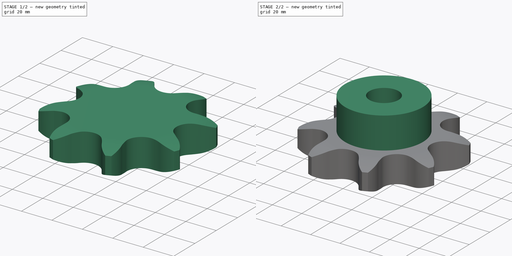
[diagram: build sequence overview — one tinted view per stage of 2, left to right]
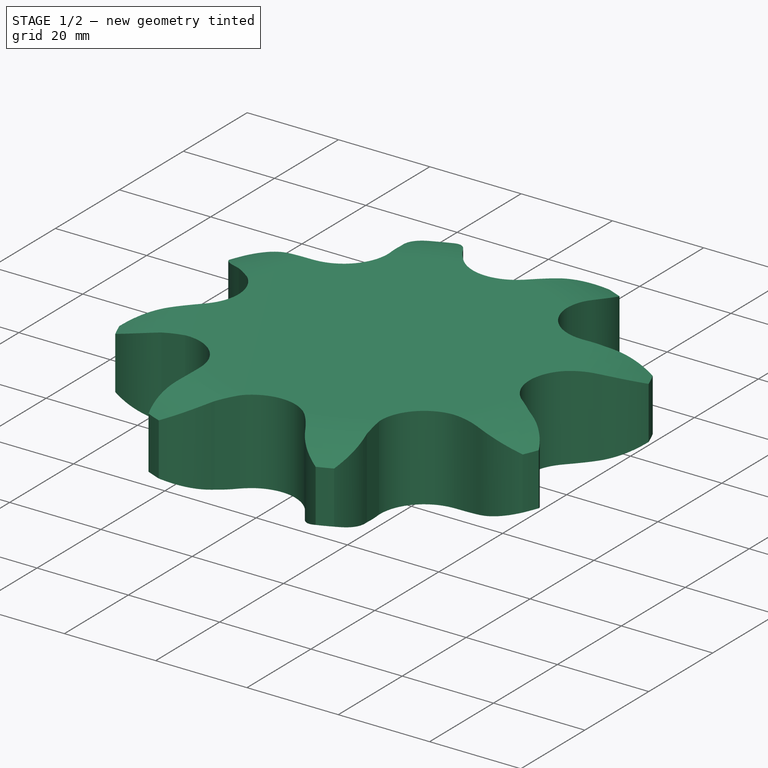
[diagram: stage 1 of 2 — iso view after this stage's code; geometry added in this stage tinted green]
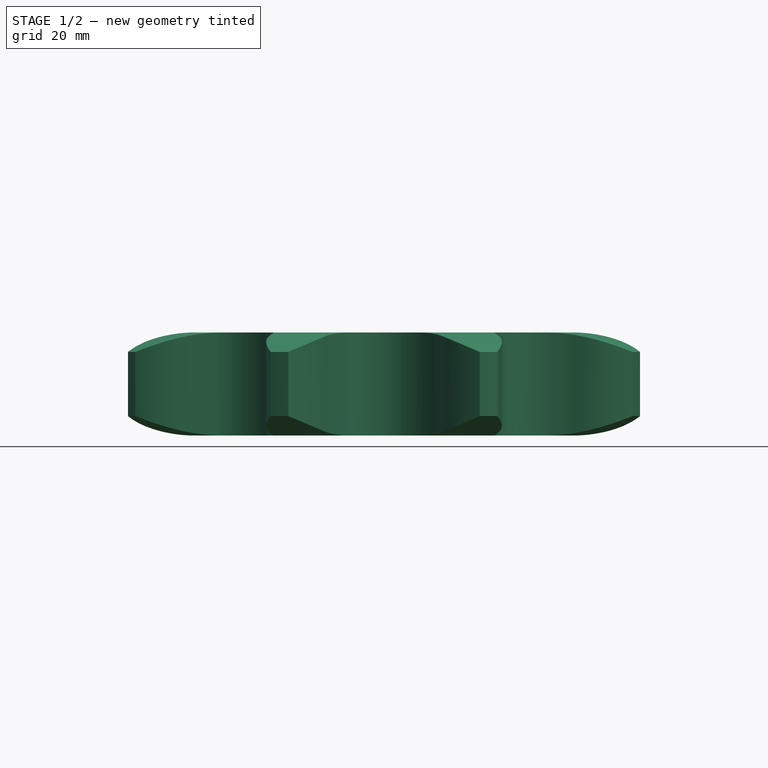
[diagram: stage 1 of 2 — front view after this stage's code; geometry added in this stage tinted green]
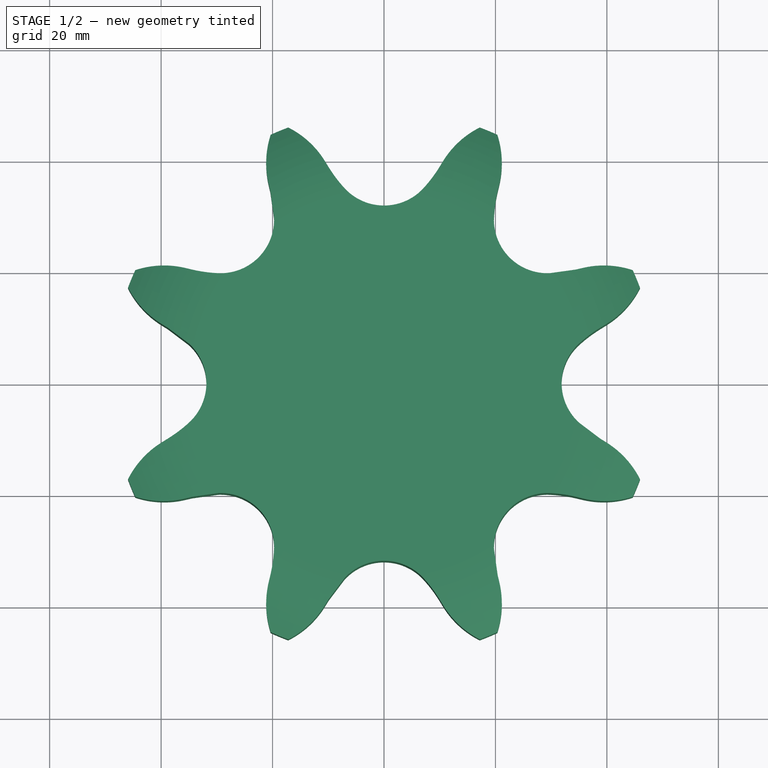
[diagram: stage 1 of 2 — top view after this stage's code; geometry added in this stage tinted green]
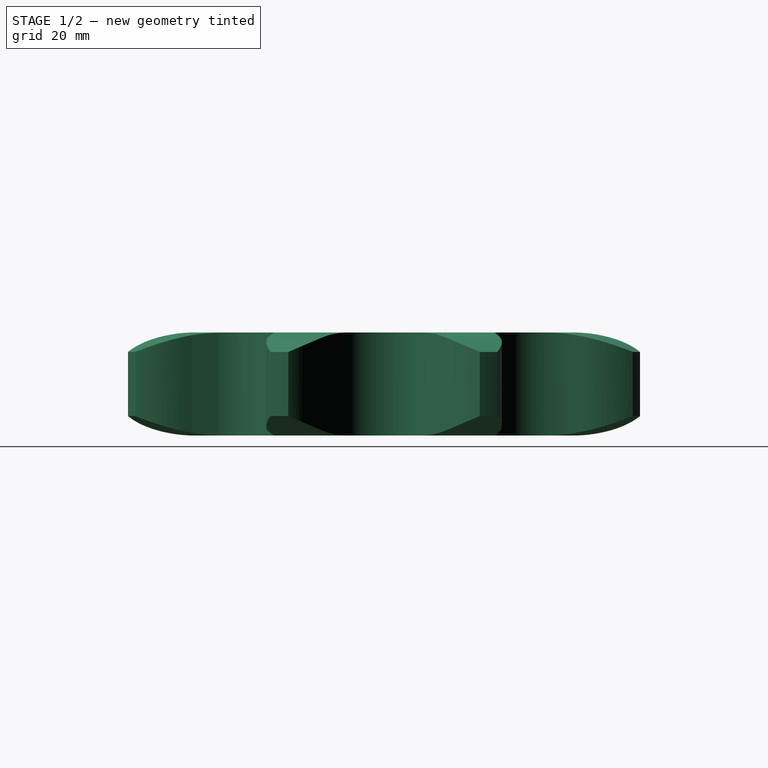
[diagram: stage 1 of 2 — right view after this stage's code; geometry added in this stage tinted green]
FCSTD DOCUMENT  (FreeCAD 0.21R33771 (Git))
Label: Sprocket ANSI simplex 1¼x¾
License: Attribution 4.0 International (CC BY 4.0)
LicenseURL: http://creativecommons.org/licenses/by/4.0/
objects: Sketcher::SketchObject×3, PartDesign::Pad×2, Spreadsheet::Sheet×1, Part::Part2DObjectPython×1, PartDesign::Groove×1, PartDesign::Pocket×1, PartDesign::Body×1, App::Part×1
note: 13 computed .brp shape members not serialized (recipe doc carries the construction recipe); baked Part::Feature solids carry a one-line shape summary decoded from their .brp

FEATURE [Spreadsheet::Sheet] Spreadsheet  label="Data"
  TeethNumber = 0
  cells = A1='Teeth Number; B1='P (Pitch); C1='Wc (Chain width); D1='Dr (Roller diameter); E1='Tr (Tooth radius); F1='Rw (Radius width); G1='Wt (Tooth width); H1='z (Number of teeth); I1='De (External Diameter); J1='Dp (pitch diameter); K1='d (Hub diameter); L1='D (Hole diameter); M1='H (Total height); A2==hiddenref(.TeethNumber.String); B2(P)==.B3; C2(Wc)==.C3; D2(Dr)==.D3; E2(Tr)==.E3; F2(Rw)==.F3; G2(Wt)==.G3; H2(z)==.H3; I2(De)==.I3; J2(Dp)==.J3; K2(d)==.K3; L2(D)==.L3; M2(H)==.M3; A3='Z 8; B3=31.75; C3=19.56; D3=19.05; E3=32; F3=3.5; G3=18.5; H3=8; I3=98.1; J3=82.96; K3=53; L3=20; M3=40; A4='Z 9; B4=31.75; C4=19.56; D4=19.05; E4=32; F4=3.5; G4=18.5; H4=9; I4=108; J4=92.84; K4=63; L4=20; M4=40; A5='Z 10; B5=31.75; C5=19.56; D5=19.05; E5=32; F5=3.5; G5=18.5; H5=10; I5=117.9; J5=102.74; K5=70; L5=20; M5=40; A6='Z 11; B6=31.75; C6=19.56; D6=19.05; E6=32; F6=3.5; G6=18.5; H6=11; I6=127.8; J6=112.68; K6=77; L6=20; M6=45; A7='Z 12; B7=31.75; C7=19.56; D7=19.05; E7=32; F7=3.5; G7=18.5; H7=12; I7=137.8; J7=122.68; K7=88; L7=20; M7=45; A8='Z 13; B8=31.75; C8=19.56; D8=19.05; E8=32; F8=3.5; G8=18.5; H8=13; I8=147.8; J8=132.65; K8=98; L8=20; M8=45; A9='Z 14; B9=31.75; C9=19.56; D9=19.05; E9=32; F9=3.5; G9=18.5; H9=14; I9=157.8; J9=142.68; K9=108; L9=20; M9=45; A10='Z 15; B10=31.75; C10=19.56; D10=19.05; E10=32; F10=3.5; G10=18.5; H10=15; I10=167.9; J10=152.72; K10=118; L10=20; M10=45; A11='Z 16; B11=31.75; C11=19.56; D11=19.05; E11=32; F11=3.5; G11=18.5; H11=16; I11=177.9; J11=162.75; K11=120; L11=25; M11=50; A12='Z 17; B12=31.75; C12=19.56; D12=19.05; E12=32; F12=3.5; G12=18.5; H12=17; I12=187.9; J12=172.78; K12=120; L12=25; M12=50; A13='Z 18; B13=31.75; C13=19.56; D13=19.05; E13=32; F13=3.5; G13=18.5; H13=18; I13=198; J13=182.85; K13=120; L13=25; M13=50; A14='Z 19; B14=31.75; C14=19.56; D14=19.05; E14=32; F14=3.5; G14=18.5; H14=19; I14=208.1; J14=192.91; K14=120; L14=25; M14=50; A15='Z 20; B15=31.75; C15=19.56; D15=19.05; E15=32; F15=3.5; G15=18.5; H15=20; I15=218.1; J15=202.98; K15=120; L15=25; M15=50; A16='Z 21; B16=31.75; C16=19.56; D16=19.05; E16=32; +307 more cells
  expr: .TeethNumber.Enum = cells[<<A3:|>>]
  expr: .cells.Bind.B2.ZZ2 = tuple(.cells; <<B>> + str(hiddenref(TeethNumber) + 3); <<ZZ>> + str(hiddenref(TeethNumber) + 3))
FEATURE [Part::Part2DObjectPython] Sprocket  label="Teeth sketch"  # Draft 2D object (typed FeaturePython)
  ANSISize = 100
  NumberOfTeeth = 8
  Pitch = 31.75
  RollerDiameter = 19.05
  expr: NumberOfTeeth = <<Data>>.z
  expr: Pitch = <<Data>>.P
  expr: RollerDiameter = <<Data>>.Dr
FEATURE [PartDesign::Pad] Pad  label="Teeth"
  Direction = (0,0,1)
  Length = 18.5
  Length2 = 100
  Profile = -> Sprocket
  Type = 0
  expr: Length = <<Data>>.Wt
FEATURE [Sketcher::SketchObject] Sketch  label="Radius"
  FullyConstrained = true
  MapMode = 5
  Placement = pos=(0,0,0) rot=(1,0,0;1.5708rad)
  Support = -> [XZ_Plane]
  expr: .Constraints.Re = <<Data>>.De / 2
  expr: .Constraints.Rw = <<Data>>.Rw
  expr: .Constraints.Tr = <<Data>>.Tr
  expr: .Constraints.Wt = <<Data>>.Wt
  sketch-geometry (10):
    g0: LineSegment StartX=34.4984 StartY=0 StartZ=0 EndX=49.05 EndY=0 EndZ=0
    g1: LineSegment StartX=49.05 StartY=0 StartZ=0 EndX=49.05 EndY=3.5 EndZ=0
    g2: ArcOfCircle CenterX=34.4984 CenterY=32 CenterZ=0 NormalX=0 NormalY=0 NormalZ=1 AngleXU=0 Radius=32 StartAngle=4.71239 EndAngle=5.18447
    g3: LineSegment StartX=49.05 StartY=3.5 StartZ=0 EndX=49.05 EndY=15 EndZ=0
    g4: LineSegment StartX=34.4984 StartY=18.5 StartZ=0 EndX=49.05 EndY=18.5 EndZ=0
    g5: LineSegment StartX=49.05 StartY=18.5 StartZ=0 EndX=49.05 EndY=15 EndZ=0
    g6: ArcOfCircle CenterX=34.4984 CenterY=-13.5 CenterZ=0 NormalX=0 NormalY=0 NormalZ=1 AngleXU=0 Radius=32 StartAngle=1.09872 EndAngle=1.5708
    g7: LineSegment StartX=49.05 StartY=18.5 StartZ=0 EndX=63.6016 EndY=18.5 EndZ=0
    g8: LineSegment StartX=63.6016 StartY=18.5 StartZ=0 EndX=63.6016 EndY=0 EndZ=0
    g9: LineSegment StartX=63.6016 StartY=0 StartZ=0 EndX=49.05 EndY=0 EndZ=0
  constraints (28):
    c: PointOnObject(g0,g-1)
    c: Horizontal(g0)
    c: Coincident(g0,g1)
    c: Vertical(g1)
    c: Tangent(g2,g0) = -1.5708
    c: Coincident(g2,g1)
    c: Coincident(g3,g1)
    c: Vertical(g3)
    c: Horizontal(g4)
    c: Coincident(g4,g5)
    c: Vertical(g5)
    c: Coincident(g6,g5)
    c: Tangent(g6,g4) = 1.5708
    c: Coincident(g5,g3)
    c: Equal(g2,g6)
    c: Equal(g5,g1)
    c: Radius(g2) = 32  'Tr'
    c: DistanceY(g0,g4) = 18.5  'Wt'
    c: DistanceX(g0) = 49.05  'Re'
    c: DistanceY(g1,g1) = 3.5  'Rw'
    c: Coincident(g4,g7)
    c: Coincident(g7,g8)
    c: Vertical(g8)
    c: Coincident(g8,g9)
    c: Coincident(g9,g0)
    c: Horizontal(g7)
    c: Horizontal(g9)
    c: Equal(g0,g9)
FEATURE [PartDesign::Groove] Groove  label="Teeth Radius"
  Angle = 360
  Axis = (-3e-16,3e-16,1)
  Base = (0,0,0)
  BaseFeature = -> Pad
  Profile = -> Sketch
  ReferenceAxis = -> Z_Axis
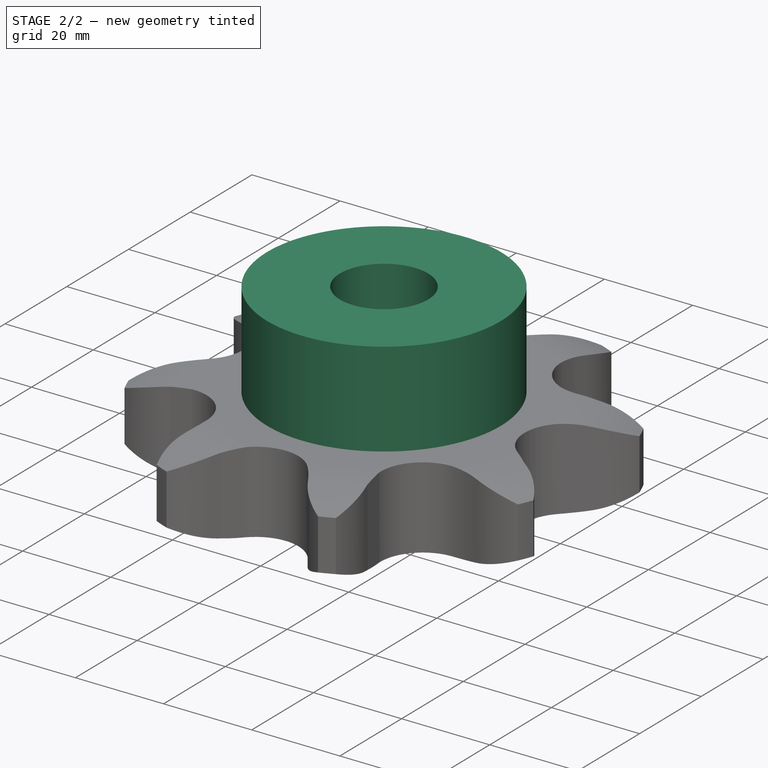
[diagram: stage 2 of 2 — iso view after this stage's code; geometry added in this stage tinted green]
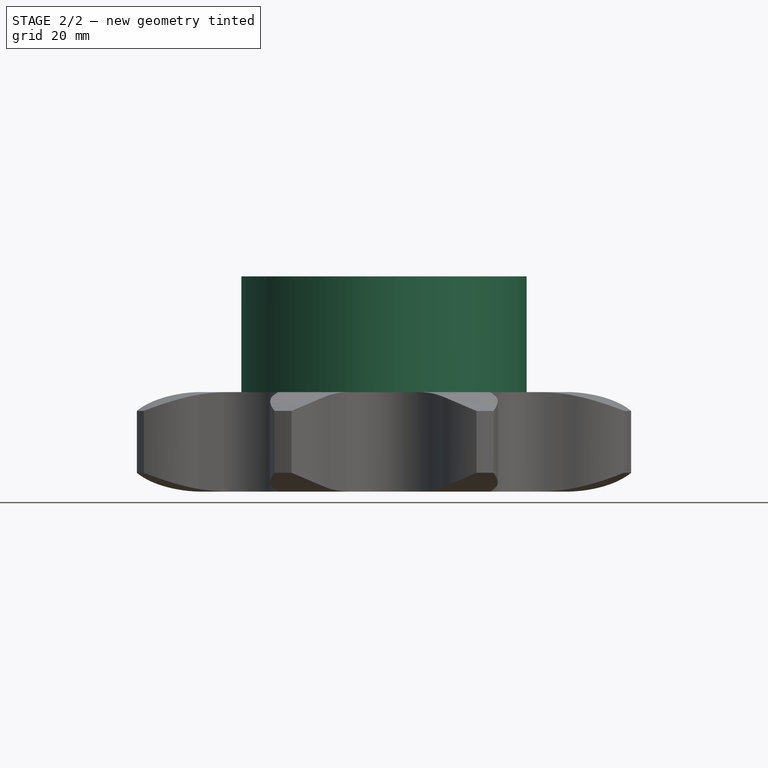
[diagram: stage 2 of 2 — front view after this stage's code; geometry added in this stage tinted green]
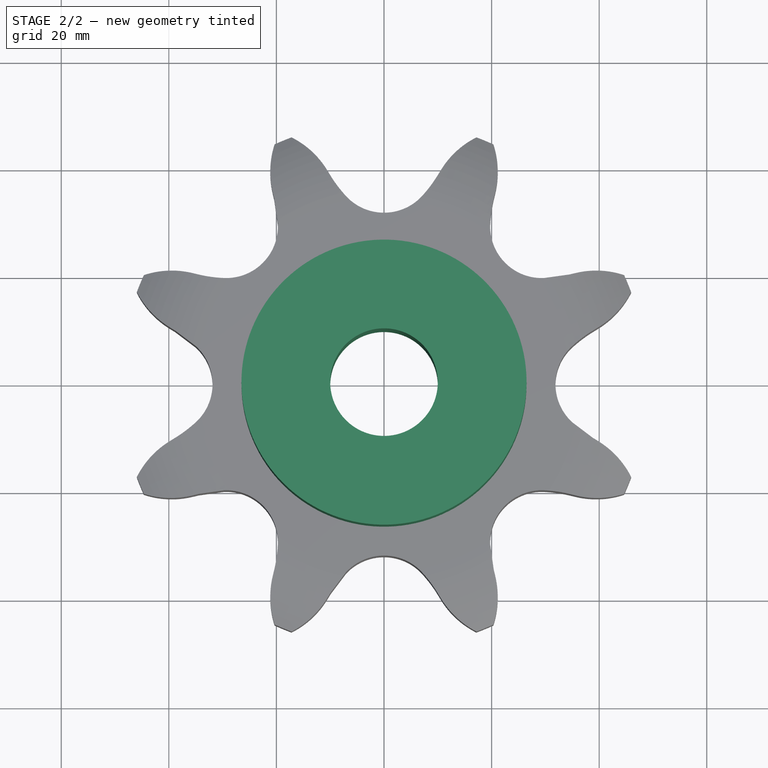
[diagram: stage 2 of 2 — top view after this stage's code; geometry added in this stage tinted green]
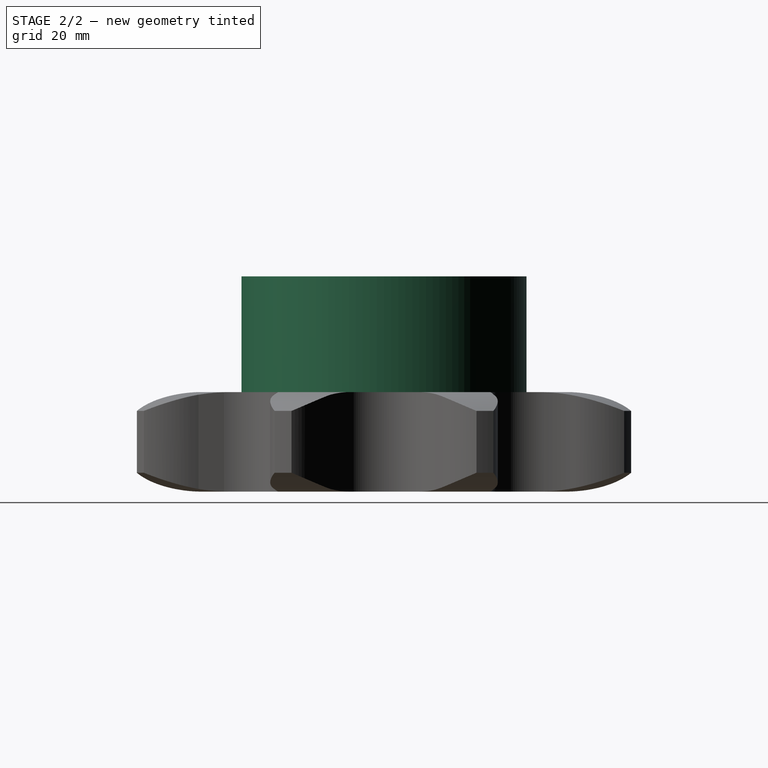
[diagram: stage 2 of 2 — right view after this stage's code; geometry added in this stage tinted green]
FEATURE [Sketcher::SketchObject] Sketch001  label="Hub sketch"
  FullyConstrained = true
  MapMode = 5
  Support = -> [XY_Plane]
  expr: .Constraints.d = <<Data>>.d
  sketch-geometry (1):
    g0: Circle CenterX=0 CenterY=0 CenterZ=0 NormalX=0 NormalY=0 NormalZ=1 AngleXU=0 Radius=26.5
  constraints (2):
    c: Coincident(g0,g-1)
    c: Diameter(g0) = 53  'd'
FEATURE [PartDesign::Pad] Pad001  label="Hub"
  BaseFeature = -> Groove
  Direction = (0,0,1)
  Length = 40
  Length2 = 100
  Profile = -> Sketch001
  Type = 0
FEATURE [Sketcher::SketchObject] Sketch002  label="Hole sketch"
  FullyConstrained = true
  MapMode = 5
  Support = -> [XY_Plane]
  expr: .Constraints.D = <<Data>>.D
  sketch-geometry (1):
    g0: Circle CenterX=0 CenterY=0 CenterZ=0 NormalX=0 NormalY=0 NormalZ=1 AngleXU=0 Radius=10
  constraints (2):
    c: Coincident(g0,g-1)
    c: Diameter(g0) = 20  'D'
FEATURE [PartDesign::Pocket] Pocket  label="Hole"
  BaseFeature = -> Pad001
  Direction = (0,0,-1)
  Length = 5
  Length2 = 100
  Midplane = true
  Profile = -> Sketch002
  Type = 1
FEATURE [PartDesign::Body] Body  label="Sprocket"
  Group = -> [Sprocket,Pad,Sketch,Groove,Sketch001,Pad001,Sketch002,Pocket]
  Origin = -> Origin
  Tip = -> Pocket
FEATURE [App::Part] Part  label="Sprocket ANSI simplex 1¼x¾"
  Group = -> [Body]
  Origin = -> Origin001
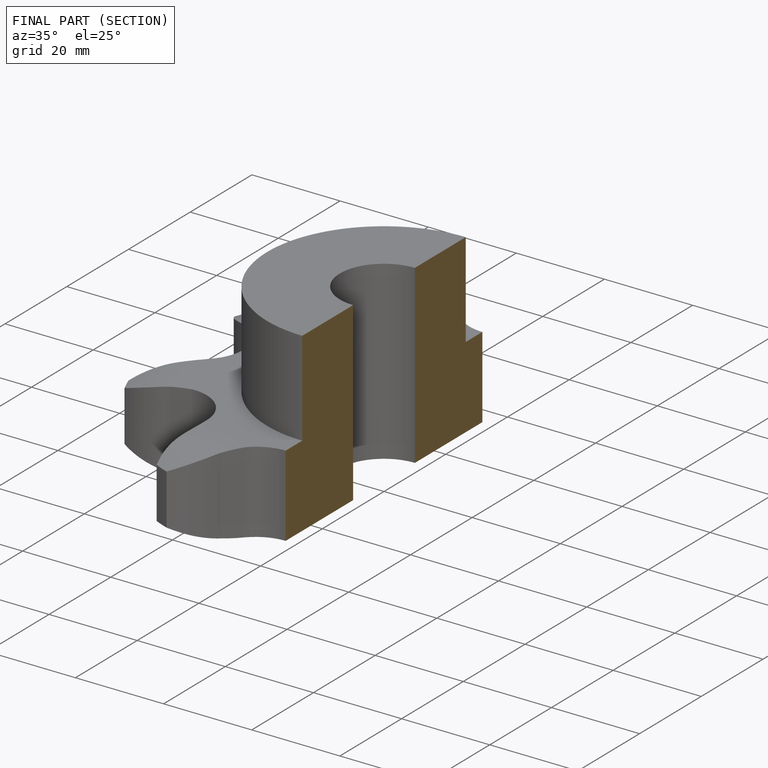
[diagram: finished part — half-section view (interior)]
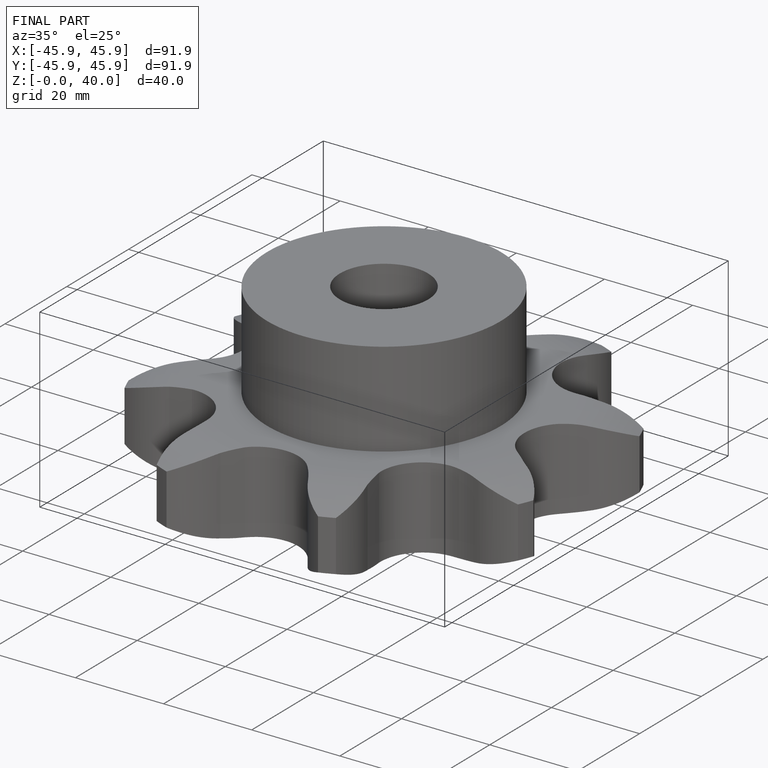
[diagram: finished part — iso view with bounding-box wireframe]
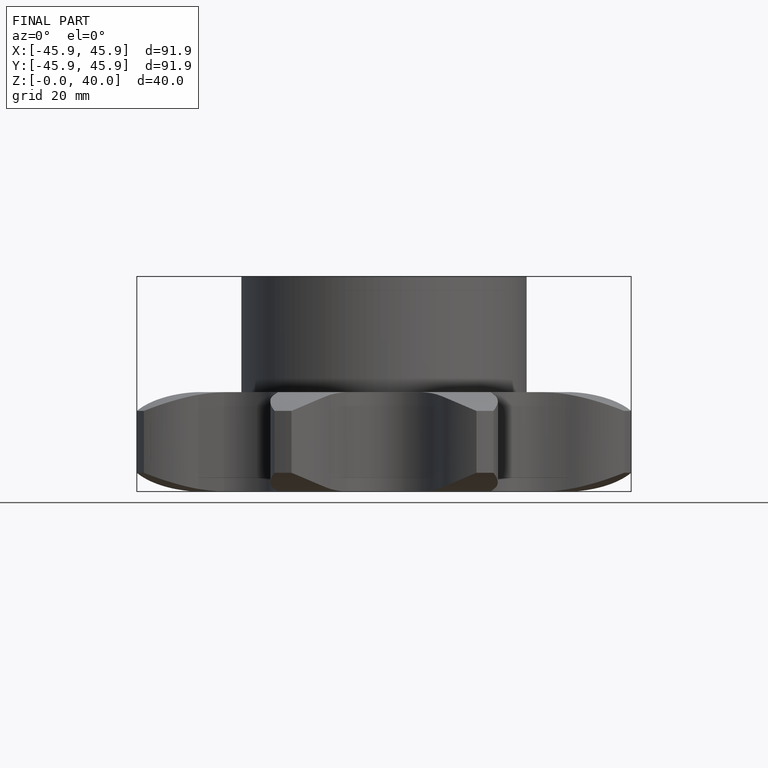
[diagram: finished part — front view with bounding-box wireframe]
